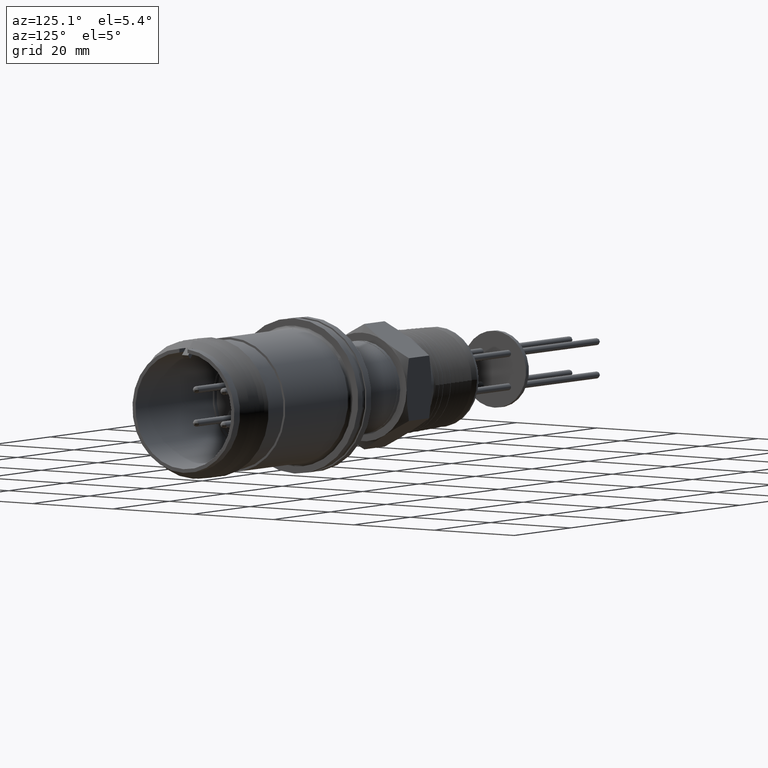
[diagram: clean part render]
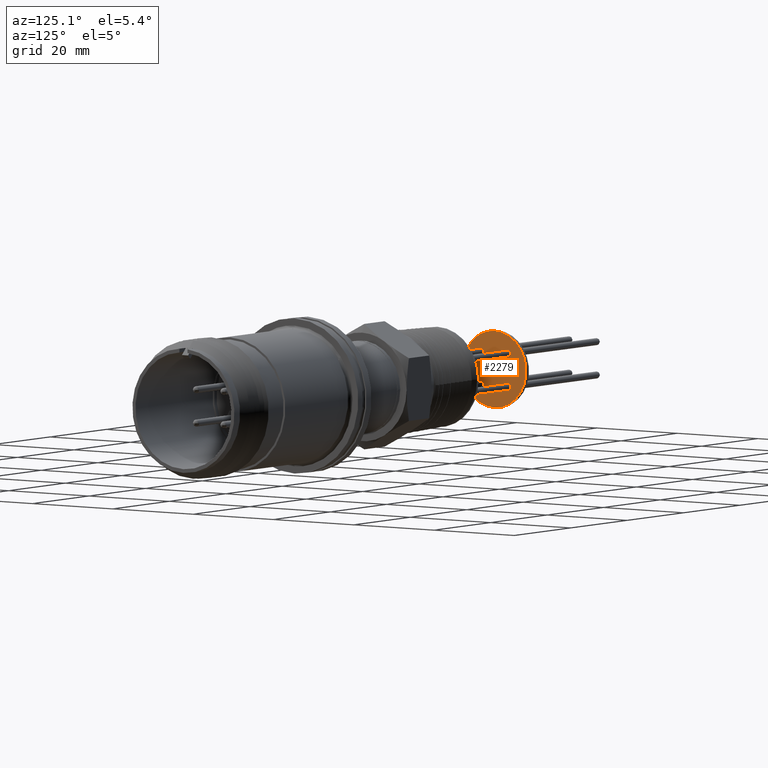
[diagram: same view with one face highlighted and labeled with its STEP entity id]
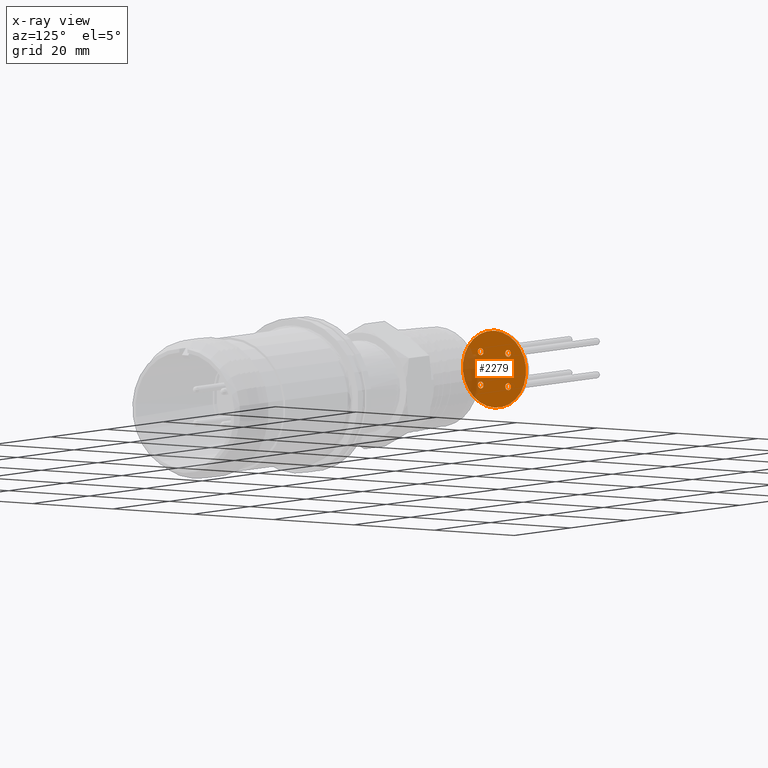
[diagram: x-ray of the same camera — body ghosted, the highlighted face saturated]
A machine part, auxiliary view. The second image highlights one B-rep face of the part: STEP entity #2279.
The next image is the same camera in x-ray: the body ghosted, the highlighted face saturated — about 15% of this face is hidden behind the body in this view.
In plain terms, the highlighted planar face has unit normal (1, 0, -0).
Its self-contained STEP definition (entity closure, byte-faithful):
#37 = AXIS2_PLACEMENT_3D ( 'NONE', #709, #708, #707 ) ;
#70 = AXIS2_PLACEMENT_3D ( 'NONE', #2502, #2501, #2500 ) ;
#167 = EDGE_LOOP ( 'NONE', ( #1041, #1685 ) ) ;
#171 = EDGE_LOOP ( 'NONE', ( #1677, #1645 ) ) ;
#179 = EDGE_LOOP ( 'NONE', ( #1059, #1676 ) ) ;
#227 = CARTESIAN_POINT ( 'NONE',  ( -1.387759510612071000, 0.1342818351389660200, 0.1064187068518087900 ) ) ;
#612 = AXIS2_PLACEMENT_3D ( 'NONE', #4832, #4833, #4826 ) ;
#707 = DIRECTION ( 'NONE',  ( 0.0000000000000000000, 0.0000000000000000000, -1.000000000000000000 ) ) ;
#708 = DIRECTION ( 'NONE',  ( 1.000000000000000000, 2.641901043531979300E-017, -1.132820884859374700E-016 ) ) ;
#709 = CARTESIAN_POINT ( 'NONE',  ( -1.387759510612071000, -0.1344187068518092300, 0.1342818351389651900 ) ) ;
#749 = AXIS2_PLACEMENT_3D ( 'NONE', #3567, #3551, #3592 ) ;
#761 = AXIS2_PLACEMENT_3D ( 'NONE', #3539, #3542, #3549 ) ;
#827 = EDGE_CURVE ( 'NONE', #7600, #7627, #5087, .T. ) ;
#877 = CIRCLE ( 'NONE', #70, 0.02800000000000011900 ) ;
#962 = CIRCLE ( 'NONE', #5531, 0.3100000000000000000 ) ;
#970 = EDGE_CURVE ( 'NONE', #7584, #7374, #5037, .T. ) ;
#1041 = ORIENTED_EDGE ( 'NONE', *, *, #2584, .T. ) ;
#1059 = ORIENTED_EDGE ( 'NONE', *, *, #2976, .F. ) ;
#1193 = ORIENTED_EDGE ( 'NONE', *, *, #5353, .F. ) ;
#1248 = EDGE_LOOP ( 'NONE', ( #1319, #1333 ) ) ;
#1319 = ORIENTED_EDGE ( 'NONE', *, *, #5407, .F. ) ;
#1333 = ORIENTED_EDGE ( 'NONE', *, *, #827, .F. ) ;
#1388 = EDGE_LOOP ( 'NONE', ( #1193, #1701 ) ) ;
#1645 = ORIENTED_EDGE ( 'NONE', *, *, #970, .F. ) ;
#1676 = ORIENTED_EDGE ( 'NONE', *, *, #2657, .F. ) ;
#1677 = ORIENTED_EDGE ( 'NONE', *, *, #5258, .F. ) ;
#1685 = ORIENTED_EDGE ( 'NONE', *, *, #5299, .T. ) ;
#1701 = ORIENTED_EDGE ( 'NONE', *, *, #2616, .F. ) ;
#2112 = DIRECTION ( 'NONE',  ( 0.0000000000000000000, 0.0000000000000000000, 1.000000000000000000 ) ) ;
#2113 = DIRECTION ( 'NONE',  ( 1.000000000000000000, 2.973651493207105100E-031, -3.898504791443006300E-031 ) ) ;
#2114 = CARTESIAN_POINT ( 'NONE',  ( -1.387759510612071000, 2.977987827911085100E-016, 1.416563534252919200E-016 ) ) ;
#2198 = AXIS2_PLACEMENT_3D ( 'NONE', #4917, #4913, #4912 ) ;
#2258 = AXIS2_PLACEMENT_3D ( 'NONE', #3854, #3853, #3852 ) ;
#2279 = ADVANCED_FACE ( 'NONE', ( #5147, #5143, #5017, #5011, #5002 ), #4829, .T. ) ;
#2500 = DIRECTION ( 'NONE',  ( 0.0000000000000000000, 0.0000000000000000000, -1.000000000000000000 ) ) ;
#2501 = DIRECTION ( 'NONE',  ( 1.000000000000000000, 2.641901043531979300E-017, -1.132820884859374700E-016 ) ) ;
#2502 = CARTESIAN_POINT ( 'NONE',  ( -1.387759510612071000, 0.1342818351389660200, 0.1344187068518089000 ) ) ;
#2584 = EDGE_CURVE ( 'NONE', #6989, #7578, #6193, .T. ) ;
#2616 = EDGE_CURVE ( 'NONE', #7368, #6786, #6159, .T. ) ;
#2657 = EDGE_CURVE ( 'NONE', #7606, #7607, #6112, .T. ) ;
#2976 = EDGE_CURVE ( 'NONE', #7607, #7606, #3055, .T. ) ;
#3055 = CIRCLE ( 'NONE', #2198, 0.02800000000000010100 ) ;
#3539 = CARTESIAN_POINT ( 'NONE',  ( -1.387759510612071000, -0.1342818351389656300, -0.1344187068518109800 ) ) ;
#3542 = DIRECTION ( 'NONE',  ( 1.000000000000000000, 2.641901043531979300E-017, -1.132820884859374700E-016 ) ) ;
#3549 = DIRECTION ( 'NONE',  ( 0.0000000000000000000, 0.0000000000000000000, -1.000000000000000000 ) ) ;
#3551 = DIRECTION ( 'NONE',  ( 1.000000000000000000, 2.641901043531979300E-017, -1.132820884859374700E-016 ) ) ;
#3567 = CARTESIAN_POINT ( 'NONE',  ( -1.387759510612071000, -0.1344187068518092300, 0.1342818351389651900 ) ) ;
#3592 = DIRECTION ( 'NONE',  ( 0.0000000000000000000, 0.0000000000000000000, -1.000000000000000000 ) ) ;
#3852 = DIRECTION ( 'NONE',  ( 0.0000000000000000000, 0.0000000000000000000, -1.000000000000000000 ) ) ;
#3853 = DIRECTION ( 'NONE',  ( 1.000000000000000000, 2.641901043531979300E-017, -1.132820884859374700E-016 ) ) ;
#3854 = CARTESIAN_POINT ( 'NONE',  ( -1.387759510612071000, 0.1344187068518115900, -0.1342818351389687400 ) ) ;
#3941 = DIRECTION ( 'NONE',  ( 0.0000000000000000000, 0.0000000000000000000, 1.000000000000000000 ) ) ;
#3942 = DIRECTION ( 'NONE',  ( 1.000000000000000000, 2.973651493207105100E-031, -3.898504791443006300E-031 ) ) ;
#3943 = CARTESIAN_POINT ( 'NONE',  ( -1.387759510612071000, 2.977987827911085100E-016, 1.416563534252919200E-016 ) ) ;
#4153 = DIRECTION ( 'NONE',  ( 0.0000000000000000000, 0.0000000000000000000, -1.000000000000000000 ) ) ;
#4154 = DIRECTION ( 'NONE',  ( 1.000000000000000000, 2.641901043531979300E-017, -1.132820884859374700E-016 ) ) ;
#4155 = CARTESIAN_POINT ( 'NONE',  ( -1.387759510612071000, -0.1342818351389656300, -0.1344187068518109800 ) ) ;
#4826 = DIRECTION ( 'NONE',  ( -3.898504791443005800E-031, 0.0000000000000000000, -1.000000000000000000 ) ) ;
#4829 = PLANE ( 'NONE',  #612 ) ;
#4832 = CARTESIAN_POINT ( 'NONE',  ( -1.387759510612071000, 2.977987827911085100E-016, 1.416563534252919200E-016 ) ) ;
#4833 = DIRECTION ( 'NONE',  ( 1.000000000000000000, 2.973651493207105600E-031, -3.898504791443005800E-031 ) ) ;
#4912 = DIRECTION ( 'NONE',  ( 0.0000000000000000000, 0.0000000000000000000, -1.000000000000000000 ) ) ;
#4913 = DIRECTION ( 'NONE',  ( 1.000000000000000000, 2.641901043531979300E-017, -1.132820884859374700E-016 ) ) ;
#4917 = CARTESIAN_POINT ( 'NONE',  ( -1.387759510612071000, 0.1344187068518115900, -0.1342818351389687400 ) ) ;
#5002 = FACE_BOUND ( 'NONE', #171, .T. ) ;
#5011 = FACE_BOUND ( 'NONE', #1388, .T. ) ;
#5017 = FACE_OUTER_BOUND ( 'NONE', #167, .T. ) ;
#5037 = CIRCLE ( 'NONE', #761, 0.02800000000000010100 ) ;
#5087 = CIRCLE ( 'NONE', #749, 0.02800000000000010100 ) ;
#5143 = FACE_BOUND ( 'NONE', #1248, .T. ) ;
#5147 = FACE_BOUND ( 'NONE', #179, .T. ) ;
#5258 = EDGE_CURVE ( 'NONE', #7374, #7584, #6000, .T. ) ;
#5299 = EDGE_CURVE ( 'NONE', #7578, #6989, #962, .T. ) ;
#5353 = EDGE_CURVE ( 'NONE', #6786, #7368, #877, .T. ) ;
#5407 = EDGE_CURVE ( 'NONE', #7627, #7600, #5605, .T. ) ;
#5426 = DIRECTION ( 'NONE',  ( 1.000000000000000000, 2.641901043531979300E-017, -1.132820884859374700E-016 ) ) ;
#5436 = DIRECTION ( 'NONE',  ( 0.0000000000000000000, 0.0000000000000000000, -1.000000000000000000 ) ) ;
#5446 = CARTESIAN_POINT ( 'NONE',  ( -1.387759510612071000, 0.1342818351389660200, 0.1344187068518089000 ) ) ;
#5531 = AXIS2_PLACEMENT_3D ( 'NONE', #3943, #3942, #3941 ) ;
#5554 = AXIS2_PLACEMENT_3D ( 'NONE', #4155, #4154, #4153 ) ;
#5605 = CIRCLE ( 'NONE', #37, 0.02800000000000010100 ) ;
#5686 = CARTESIAN_POINT ( 'NONE',  ( -1.387759510612071000, 2.977987827911085100E-016, 0.3100000000000001100 ) ) ;
#5811 = CARTESIAN_POINT ( 'NONE',  ( -1.387759510612071000, 0.1342818351389660200, 0.1624187068518090400 ) ) ;
#5816 = CARTESIAN_POINT ( 'NONE',  ( -1.387759510612071000, -0.1342818351389656300, -0.1624187068518110600 ) ) ;
#5869 = CARTESIAN_POINT ( 'NONE',  ( -1.387759510612071000, 3.357628335646764500E-016, -0.3099999999999998300 ) ) ;
#5874 = CARTESIAN_POINT ( 'NONE',  ( -1.387759510612071000, -0.1342818351389656300, -0.1064187068518108700 ) ) ;
#5890 = CARTESIAN_POINT ( 'NONE',  ( -1.387759510612071000, -0.1344187068518092100, 0.1622818351389653000 ) ) ;
#5896 = CARTESIAN_POINT ( 'NONE',  ( -1.387759510612071000, 0.1344187068518115900, -0.1062818351389686200 ) ) ;
#5897 = CARTESIAN_POINT ( 'NONE',  ( -1.387759510612071000, 0.1344187068518115900, -0.1622818351389688500 ) ) ;
#5917 = CARTESIAN_POINT ( 'NONE',  ( -1.387759510612071000, -0.1344187068518092300, 0.1062818351389650800 ) ) ;
#6000 = CIRCLE ( 'NONE', #5554, 0.02800000000000010100 ) ;
#6112 = CIRCLE ( 'NONE', #2258, 0.02800000000000010100 ) ;
#6159 = CIRCLE ( 'NONE', #6487, 0.02800000000000011900 ) ;
#6193 = CIRCLE ( 'NONE', #6512, 0.3100000000000000000 ) ;
#6487 = AXIS2_PLACEMENT_3D ( 'NONE', #5446, #5426, #5436 ) ;
#6512 = AXIS2_PLACEMENT_3D ( 'NONE', #2114, #2113, #2112 ) ;
#6786 = VERTEX_POINT ( 'NONE', #227 ) ;
#6989 = VERTEX_POINT ( 'NONE', #5686 ) ;
#7368 = VERTEX_POINT ( 'NONE', #5811 ) ;
#7374 = VERTEX_POINT ( 'NONE', #5816 ) ;
#7578 = VERTEX_POINT ( 'NONE', #5869 ) ;
#7584 = VERTEX_POINT ( 'NONE', #5874 ) ;
#7600 = VERTEX_POINT ( 'NONE', #5890 ) ;
#7606 = VERTEX_POINT ( 'NONE', #5896 ) ;
#7607 = VERTEX_POINT ( 'NONE', #5897 ) ;
#7627 = VERTEX_POINT ( 'NONE', #5917 ) ;